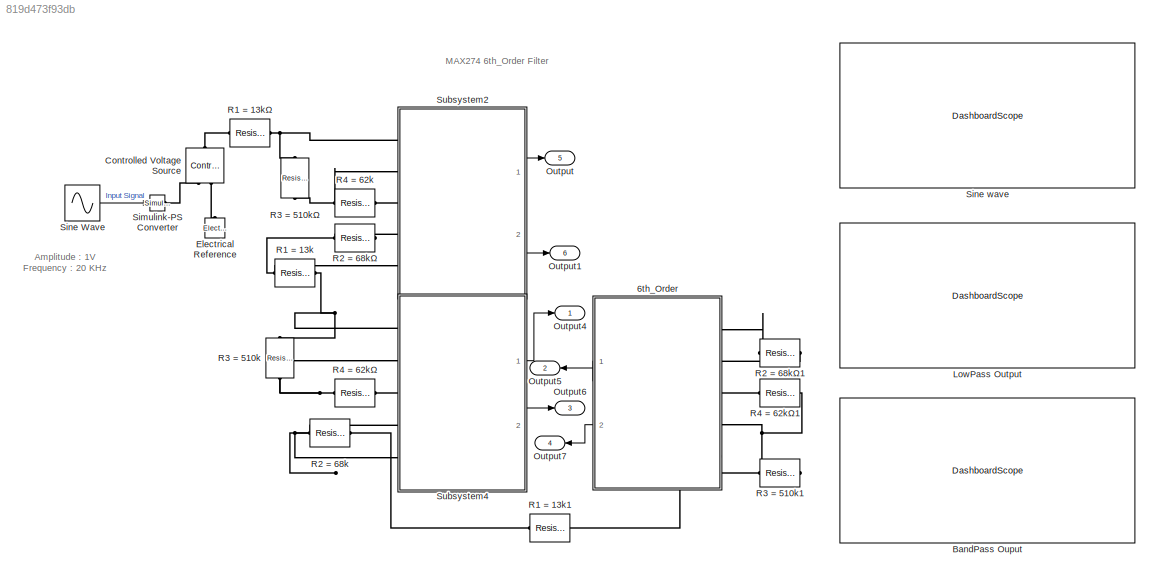
MODEL slx_819d473f93db
KIND model
CONFIG AbsTol = auto
CONFIG EnableMultiTasking = off
CONFIG FixedStep = auto
CONFIG MaxStep = auto
CONFIG MinStep = auto
CONFIG RelTol = 1e-3
CONFIG SampleTimeConstraint = Unconstrained
CONFIG Solver = VariableStepAuto
CONFIG SolverName = VariableStepAuto
CONFIG StartTime = 0.0
CONFIG StopTime = 0.01
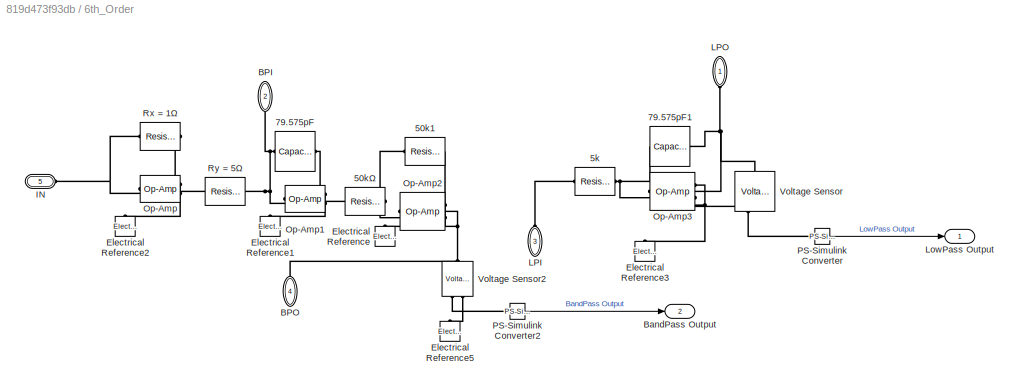
BLOCK [SubSystem] 6th_Order
  Ports = [0, 2, 0, 0, 0, 5]
  RequestExecContextInheritance = off
BLOCK [Reference] 6th_Order/50k1  REF=elec_lib/Passive Devices/Resistor
  Ports = [0, 0, 0, 0, 0, 1, 1]
  SourceBlock = elec_lib/Passive Devices/Resistor
  SourceProductBaseCode = SN
  SourceProductName = Simscape Electronics
  SourceType = Resistor
BLOCK [Reference] 6th_Order/50kΩ  REF=elec_lib/Passive Devices/Resistor
  Ports = [0, 0, 0, 0, 0, 1, 1]
  SourceBlock = elec_lib/Passive Devices/Resistor
  SourceProductBaseCode = SN
  SourceProductName = Simscape Electronics
  SourceType = Resistor
BLOCK [Reference] 6th_Order/5k  REF=elec_lib/Passive Devices/Resistor
  Ports = [0, 0, 0, 0, 0, 1, 1]
  SourceBlock = elec_lib/Passive Devices/Resistor
  SourceProductBaseCode = SN
  SourceProductName = Simscape Electronics
  SourceType = Resistor
BLOCK [Reference] 6th_Order/79.575pF  REF=elec_lib/Passive Devices/Capacitor
  Ports = [0, 0, 0, 0, 0, 1, 1]
  SourceBlock = elec_lib/Passive Devices/Capacitor
  SourceProductBaseCode = SN
  SourceProductName = Simscape Electronics
  SourceType = Capacitor
BLOCK [Reference] 6th_Order/79.575pF1  REF=elec_lib/Passive Devices/Capacitor
  Ports = [0, 0, 0, 0, 0, 1, 1]
  SourceBlock = elec_lib/Passive Devices/Capacitor
  SourceProductBaseCode = SN
  SourceProductName = Simscape Electronics
  SourceType = Capacitor
BLOCK [PMIOPort] 6th_Order/BPI
  Port = 2
  Side = Left
BLOCK [PMIOPort] 6th_Order/BPO
  Port = 4
  Side = Left
BLOCK [Outport] 6th_Order/BandPass Output
  IconDisplay = Port number
  Port = 2
BLOCK [Reference] 6th_Order/Electrical Reference  REF=fl_lib/Electrical/Electrical Elements/Electrical Reference
  Ports = [0, 0, 0, 0, 0, 1]
  SourceBlock = fl_lib/Electrical/Electrical Elements/Electrical Reference
  SourceProductBaseCode = SS
  SourceProductName = Simscape
  SourceType = Electrical Reference
BLOCK [Reference] 6th_Order/Electrical Reference1  REF=fl_lib/Electrical/Electrical Elements/Electrical Reference
  Ports = [0, 0, 0, 0, 0, 1]
  SourceBlock = fl_lib/Electrical/Electrical Elements/Electrical Reference
  SourceProductBaseCode = SS
  SourceProductName = Simscape
  SourceType = Electrical Reference
BLOCK [Reference] 6th_Order/Electrical Reference2  REF=fl_lib/Electrical/Electrical Elements/Electrical Reference
  Ports = [0, 0, 0, 0, 0, 1]
  SourceBlock = fl_lib/Electrical/Electrical Elements/Electrical Reference
  SourceProductBaseCode = SS
  SourceProductName = Simscape
  SourceType = Electrical Reference
BLOCK [Reference] 6th_Order/Electrical Reference3  REF=fl_lib/Electrical/Electrical Elements/Electrical Reference
  Ports = [0, 0, 0, 0, 0, 1]
  SourceBlock = fl_lib/Electrical/Electrical Elements/Electrical Reference
  SourceProductBaseCode = SS
  SourceProductName = Simscape
  SourceType = Electrical Reference
BLOCK [Reference] 6th_Order/Electrical Reference5  REF=fl_lib/Electrical/Electrical Elements/Electrical Reference
  Ports = [0, 0, 0, 0, 0, 1]
  SourceBlock = fl_lib/Electrical/Electrical Elements/Electrical Reference
  SourceProductBaseCode = SS
  SourceProductName = Simscape
  SourceType = Electrical Reference
BLOCK [PMIOPort] 6th_Order/IN
  Port = 5
  Side = Left
BLOCK [PMIOPort] 6th_Order/LPI
  Port = 3
  Side = Left
BLOCK [PMIOPort] 6th_Order/LPO
  Side = Left
BLOCK [Outport] 6th_Order/LowPass Output
  IconDisplay = Port number
BLOCK [Reference] 6th_Order/Op-Amp  REF=fl_lib/Electrical/Electrical Elements/Op-Amp
  Ports = [0, 0, 0, 0, 0, 2, 1]
  SourceBlock = fl_lib/Electrical/Electrical Elements/Op-Amp
  SourceProductBaseCode = SS
  SourceProductName = Simscape
  SourceType = Op-Amp
BLOCK [Reference] 6th_Order/Op-Amp1  REF=fl_lib/Electrical/Electrical Elements/Op-Amp
  Ports = [0, 0, 0, 0, 0, 2, 1]
  SourceBlock = fl_lib/Electrical/Electrical Elements/Op-Amp
  SourceProductBaseCode = SS
  SourceProductName = Simscape
  SourceType = Op-Amp
BLOCK [Reference] 6th_Order/Op-Amp2  REF=fl_lib/Electrical/Electrical Elements/Op-Amp
  Ports = [0, 0, 0, 0, 0, 2, 1]
  SourceBlock = fl_lib/Electrical/Electrical Elements/Op-Amp
  SourceProductBaseCode = SS
  SourceProductName = Simscape
  SourceType = Op-Amp
BLOCK [Reference] 6th_Order/Op-Amp3  REF=fl_lib/Electrical/Electrical Elements/Op-Amp
  Ports = [0, 0, 0, 0, 0, 2, 1]
  SourceBlock = fl_lib/Electrical/Electrical Elements/Op-Amp
  SourceProductBaseCode = SS
  SourceProductName = Simscape
  SourceType = Op-Amp
BLOCK [Reference] 6th_Order/PS-Simulink Converter  REF=nesl_utility/PS-Simulink
Converter
  Ports = [0, 1, 0, 0, 0, 1]
  SourceBlock = nesl_utility/PS-Simulink\nConverter
  SourceProductBaseCode = SS
  SourceProductName = Simscape
  SourceType = PS-Simulink\nConverter
BLOCK [Reference] 6th_Order/PS-Simulink Converter2  REF=nesl_utility/PS-Simulink
Converter
  Ports = [0, 1, 0, 0, 0, 1]
  SourceBlock = nesl_utility/PS-Simulink\nConverter
  SourceProductBaseCode = SS
  SourceProductName = Simscape
  SourceType = PS-Simulink\nConverter
BLOCK [Reference] 6th_Order/Rx = 1Ω  REF=elec_lib/Passive Devices/Resistor
  Ports = [0, 0, 0, 0, 0, 1, 1]
  SourceBlock = elec_lib/Passive Devices/Resistor
  SourceProductBaseCode = SN
  SourceProductName = Simscape Electronics
  SourceType = Resistor
BLOCK [Reference] 6th_Order/Ry = 5Ω  REF=elec_lib/Passive Devices/Resistor
  Ports = [0, 0, 0, 0, 0, 1, 1]
  SourceBlock = elec_lib/Passive Devices/Resistor
  SourceProductBaseCode = SN
  SourceProductName = Simscape Electronics
  SourceType = Resistor
BLOCK [Reference] 6th_Order/Voltage Sensor  REF=fl_lib/Electrical/Electrical Sensors/Voltage Sensor
  Ports = [0, 0, 0, 0, 0, 1, 2]
  SourceBlock = fl_lib/Electrical/Electrical Sensors/Voltage Sensor
  SourceProductBaseCode = SS
  SourceProductName = Simscape
  SourceType = Voltage Sensor
BLOCK [Reference] 6th_Order/Voltage Sensor2  REF=fl_lib/Electrical/Electrical Sensors/Voltage Sensor
  Ports = [0, 0, 0, 0, 0, 1, 2]
  SourceBlock = fl_lib/Electrical/Electrical Sensors/Voltage Sensor
  SourceProductBaseCode = SS
  SourceProductName = Simscape
  SourceType = Voltage Sensor
BLOCK [DashboardScope] BandPass Ouput
  WebBlockId = 617
BLOCK [Reference] Controlled Voltage Source  REF=fl_lib/Electrical/Electrical Sources/Controlled Voltage
Source
  Ports = [0, 0, 0, 0, 0, 1, 2]
  SourceBlock = fl_lib/Electrical/Electrical Sources/Controlled Voltage\nSource
  SourceProductBaseCode = SS
  SourceProductName = Simscape
  SourceType = Controlled Voltage\nSource
BLOCK [Reference] Electrical Reference  REF=fl_lib/Electrical/Electrical Elements/Electrical Reference
  Ports = [0, 0, 0, 0, 0, 1]
  SourceBlock = fl_lib/Electrical/Electrical Elements/Electrical Reference
  SourceProductBaseCode = SS
  SourceProductName = Simscape
  SourceType = Electrical Reference
BLOCK [DashboardScope] LowPass Output
  WebBlockId = 616
BLOCK [Outport] Output
  IconDisplay = Port number
  Port = 5
BLOCK [Outport] Output1
  IconDisplay = Port number
  Port = 6
BLOCK [Outport] Output4
  IconDisplay = Port number
BLOCK [Outport] Output5
  IconDisplay = Port number
  Port = 2
BLOCK [Outport] Output6
  IconDisplay = Port number
  Port = 3
BLOCK [Outport] Output7
  IconDisplay = Port number
  Port = 4
BLOCK [Reference] R1 = 13k  REF=elec_lib/Passive Devices/Resistor
  Ports = [0, 0, 0, 0, 0, 1, 1]
  SourceBlock = elec_lib/Passive Devices/Resistor
  SourceProductBaseCode = SN
  SourceProductName = Simscape Electronics
  SourceType = Resistor
BLOCK [Reference] R1 = 13k1  REF=elec_lib/Passive Devices/Resistor
  Ports = [0, 0, 0, 0, 0, 1, 1]
  SourceBlock = elec_lib/Passive Devices/Resistor
  SourceProductBaseCode = SN
  SourceProductName = Simscape Electronics
  SourceType = Resistor
BLOCK [Reference] R1 = 13kΩ  REF=elec_lib/Passive Devices/Resistor
  Ports = [0, 0, 0, 0, 0, 1, 1]
  SourceBlock = elec_lib/Passive Devices/Resistor
  SourceProductBaseCode = SN
  SourceProductName = Simscape Electronics
  SourceType = Resistor
BLOCK [Reference] R2 = 68k  REF=elec_lib/Passive Devices/Resistor
  Ports = [0, 0, 0, 0, 0, 1, 1]
  SourceBlock = elec_lib/Passive Devices/Resistor
  SourceProductBaseCode = SN
  SourceProductName = Simscape Electronics
  SourceType = Resistor
BLOCK [Reference] R2 = 68kΩ  REF=elec_lib/Passive Devices/Resistor
  Ports = [0, 0, 0, 0, 0, 1, 1]
  SourceBlock = elec_lib/Passive Devices/Resistor
  SourceProductBaseCode = SN
  SourceProductName = Simscape Electronics
  SourceType = Resistor
BLOCK [Reference] R2 = 68kΩ1  REF=elec_lib/Passive Devices/Resistor
  Ports = [0, 0, 0, 0, 0, 1, 1]
  SourceBlock = elec_lib/Passive Devices/Resistor
  SourceProductBaseCode = SN
  SourceProductName = Simscape Electronics
  SourceType = Resistor
BLOCK [Reference] R3 = 510k  REF=elec_lib/Passive Devices/Resistor
  Ports = [0, 0, 0, 0, 0, 1, 1]
  SourceBlock = elec_lib/Passive Devices/Resistor
  SourceProductBaseCode = SN
  SourceProductName = Simscape Electronics
  SourceType = Resistor
BLOCK [Reference] R3 = 510k1  REF=elec_lib/Passive Devices/Resistor
  Ports = [0, 0, 0, 0, 0, 1, 1]
  SourceBlock = elec_lib/Passive Devices/Resistor
  SourceProductBaseCode = SN
  SourceProductName = Simscape Electronics
  SourceType = Resistor
BLOCK [Reference] R3 = 510kΩ  REF=elec_lib/Passive Devices/Resistor
  Ports = [0, 0, 0, 0, 0, 1, 1]
  SourceBlock = elec_lib/Passive Devices/Resistor
  SourceProductBaseCode = SN
  SourceProductName = Simscape Electronics
  SourceType = Resistor
BLOCK [Reference] R4 = 62k  REF=elec_lib/Passive Devices/Resistor
  Ports = [0, 0, 0, 0, 0, 1, 1]
  SourceBlock = elec_lib/Passive Devices/Resistor
  SourceProductBaseCode = SN
  SourceProductName = Simscape Electronics
  SourceType = Resistor
BLOCK [Reference] R4 = 62kΩ  REF=elec_lib/Passive Devices/Resistor
  Ports = [0, 0, 0, 0, 0, 1, 1]
  SourceBlock = elec_lib/Passive Devices/Resistor
  SourceProductBaseCode = SN
  SourceProductName = Simscape Electronics
  SourceType = Resistor
BLOCK [Reference] R4 = 62kΩ1  REF=elec_lib/Passive Devices/Resistor
  Ports = [0, 0, 0, 0, 0, 1, 1]
  SourceBlock = elec_lib/Passive Devices/Resistor
  SourceProductBaseCode = SN
  SourceProductName = Simscape Electronics
  SourceType = Resistor
BLOCK [Reference] Simulink-PS Converter  REF=nesl_utility/Simulink-PS
Converter
  Ports = [1, 0, 0, 0, 0, 0, 1]
  SourceBlock = nesl_utility/Simulink-PS\nConverter
  SourceProductBaseCode = SS
  SourceProductName = Simscape
  SourceType = Simulink-PS\nConverter
BLOCK [Sin] Sine Wave 
  Frequency = 2*pi*20e3
  Ports = [0, 1]
  SampleTime = 0
BLOCK [DashboardScope] Sine wave
  WebBlockId = 604
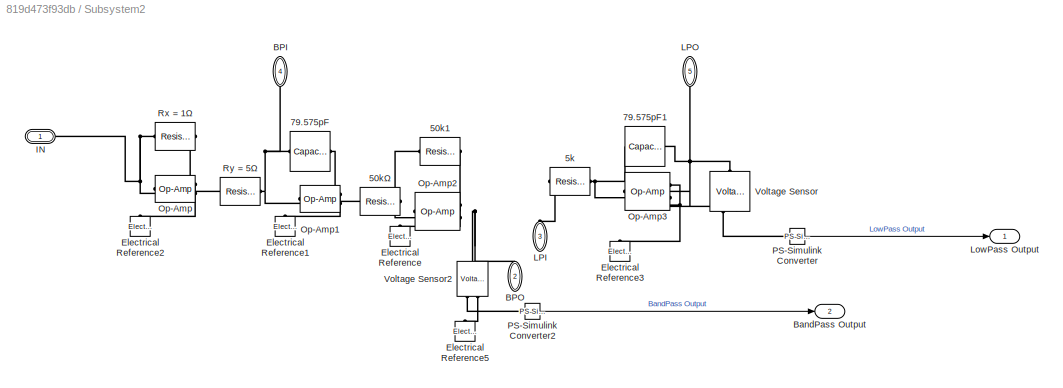
BLOCK [SubSystem] Subsystem2
  Ports = [0, 2, 0, 0, 0, 5]
  RequestExecContextInheritance = off
BLOCK [Reference] Subsystem2/50k1  REF=elec_lib/Passive Devices/Resistor
  Ports = [0, 0, 0, 0, 0, 1, 1]
  SourceBlock = elec_lib/Passive Devices/Resistor
  SourceProductBaseCode = SN
  SourceProductName = Simscape Electronics
  SourceType = Resistor
BLOCK [Reference] Subsystem2/50kΩ  REF=elec_lib/Passive Devices/Resistor
  Ports = [0, 0, 0, 0, 0, 1, 1]
  SourceBlock = elec_lib/Passive Devices/Resistor
  SourceProductBaseCode = SN
  SourceProductName = Simscape Electronics
  SourceType = Resistor
BLOCK [Reference] Subsystem2/5k  REF=elec_lib/Passive Devices/Resistor
  Ports = [0, 0, 0, 0, 0, 1, 1]
  SourceBlock = elec_lib/Passive Devices/Resistor
  SourceProductBaseCode = SN
  SourceProductName = Simscape Electronics
  SourceType = Resistor
BLOCK [Reference] Subsystem2/79.575pF  REF=elec_lib/Passive Devices/Capacitor
  Ports = [0, 0, 0, 0, 0, 1, 1]
  SourceBlock = elec_lib/Passive Devices/Capacitor
  SourceProductBaseCode = SN
  SourceProductName = Simscape Electronics
  SourceType = Capacitor
BLOCK [Reference] Subsystem2/79.575pF1  REF=elec_lib/Passive Devices/Capacitor
  Ports = [0, 0, 0, 0, 0, 1, 1]
  SourceBlock = elec_lib/Passive Devices/Capacitor
  SourceProductBaseCode = SN
  SourceProductName = Simscape Electronics
  SourceType = Capacitor
BLOCK [PMIOPort] Subsystem2/BPI
  Port = 4
  Side = Left
BLOCK [PMIOPort] Subsystem2/BPO
  Port = 2
  Side = Left
BLOCK [Outport] Subsystem2/BandPass Output
  IconDisplay = Port number
  Port = 2
BLOCK [Reference] Subsystem2/Electrical Reference  REF=fl_lib/Electrical/Electrical Elements/Electrical Reference
  Ports = [0, 0, 0, 0, 0, 1]
  SourceBlock = fl_lib/Electrical/Electrical Elements/Electrical Reference
  SourceProductBaseCode = SS
  SourceProductName = Simscape
  SourceType = Electrical Reference
BLOCK [Reference] Subsystem2/Electrical Reference1  REF=fl_lib/Electrical/Electrical Elements/Electrical Reference
  Ports = [0, 0, 0, 0, 0, 1]
  SourceBlock = fl_lib/Electrical/Electrical Elements/Electrical Reference
  SourceProductBaseCode = SS
  SourceProductName = Simscape
  SourceType = Electrical Reference
BLOCK [Reference] Subsystem2/Electrical Reference2  REF=fl_lib/Electrical/Electrical Elements/Electrical Reference
  Ports = [0, 0, 0, 0, 0, 1]
  SourceBlock = fl_lib/Electrical/Electrical Elements/Electrical Reference
  SourceProductBaseCode = SS
  SourceProductName = Simscape
  SourceType = Electrical Reference
BLOCK [Reference] Subsystem2/Electrical Reference3  REF=fl_lib/Electrical/Electrical Elements/Electrical Reference
  Ports = [0, 0, 0, 0, 0, 1]
  SourceBlock = fl_lib/Electrical/Electrical Elements/Electrical Reference
  SourceProductBaseCode = SS
  SourceProductName = Simscape
  SourceType = Electrical Reference
BLOCK [Reference] Subsystem2/Electrical Reference5  REF=fl_lib/Electrical/Electrical Elements/Electrical Reference
  Ports = [0, 0, 0, 0, 0, 1]
  SourceBlock = fl_lib/Electrical/Electrical Elements/Electrical Reference
  SourceProductBaseCode = SS
  SourceProductName = Simscape
  SourceType = Electrical Reference
BLOCK [PMIOPort] Subsystem2/IN
  Side = Left
BLOCK [PMIOPort] Subsystem2/LPI
  Port = 3
  Side = Left
BLOCK [PMIOPort] Subsystem2/LPO
  Port = 5
  Side = Left
BLOCK [Outport] Subsystem2/LowPass Output
  IconDisplay = Port number
BLOCK [Reference] Subsystem2/Op-Amp  REF=fl_lib/Electrical/Electrical Elements/Op-Amp
  Ports = [0, 0, 0, 0, 0, 2, 1]
  SourceBlock = fl_lib/Electrical/Electrical Elements/Op-Amp
  SourceProductBaseCode = SS
  SourceProductName = Simscape
  SourceType = Op-Amp
BLOCK [Reference] Subsystem2/Op-Amp1  REF=fl_lib/Electrical/Electrical Elements/Op-Amp
  Ports = [0, 0, 0, 0, 0, 2, 1]
  SourceBlock = fl_lib/Electrical/Electrical Elements/Op-Amp
  SourceProductBaseCode = SS
  SourceProductName = Simscape
  SourceType = Op-Amp
BLOCK [Reference] Subsystem2/Op-Amp2  REF=fl_lib/Electrical/Electrical Elements/Op-Amp
  Ports = [0, 0, 0, 0, 0, 2, 1]
  SourceBlock = fl_lib/Electrical/Electrical Elements/Op-Amp
  SourceProductBaseCode = SS
  SourceProductName = Simscape
  SourceType = Op-Amp
BLOCK [Reference] Subsystem2/Op-Amp3  REF=fl_lib/Electrical/Electrical Elements/Op-Amp
  Ports = [0, 0, 0, 0, 0, 2, 1]
  SourceBlock = fl_lib/Electrical/Electrical Elements/Op-Amp
  SourceProductBaseCode = SS
  SourceProductName = Simscape
  SourceType = Op-Amp
BLOCK [Reference] Subsystem2/PS-Simulink Converter  REF=nesl_utility/PS-Simulink
Converter
  Ports = [0, 1, 0, 0, 0, 1]
  SourceBlock = nesl_utility/PS-Simulink\nConverter
  SourceProductBaseCode = SS
  SourceProductName = Simscape
  SourceType = PS-Simulink\nConverter
BLOCK [Reference] Subsystem2/PS-Simulink Converter2  REF=nesl_utility/PS-Simulink
Converter
  Ports = [0, 1, 0, 0, 0, 1]
  SourceBlock = nesl_utility/PS-Simulink\nConverter
  SourceProductBaseCode = SS
  SourceProductName = Simscape
  SourceType = PS-Simulink\nConverter
BLOCK [Reference] Subsystem2/Rx = 1Ω  REF=elec_lib/Passive Devices/Resistor
  Ports = [0, 0, 0, 0, 0, 1, 1]
  SourceBlock = elec_lib/Passive Devices/Resistor
  SourceProductBaseCode = SN
  SourceProductName = Simscape Electronics
  SourceType = Resistor
BLOCK [Reference] Subsystem2/Ry = 5Ω  REF=elec_lib/Passive Devices/Resistor
  Ports = [0, 0, 0, 0, 0, 1, 1]
  SourceBlock = elec_lib/Passive Devices/Resistor
  SourceProductBaseCode = SN
  SourceProductName = Simscape Electronics
  SourceType = Resistor
BLOCK [Reference] Subsystem2/Voltage Sensor  REF=fl_lib/Electrical/Electrical Sensors/Voltage Sensor
  Ports = [0, 0, 0, 0, 0, 1, 2]
  SourceBlock = fl_lib/Electrical/Electrical Sensors/Voltage Sensor
  SourceProductBaseCode = SS
  SourceProductName = Simscape
  SourceType = Voltage Sensor
BLOCK [Reference] Subsystem2/Voltage Sensor2  REF=fl_lib/Electrical/Electrical Sensors/Voltage Sensor
  Ports = [0, 0, 0, 0, 0, 1, 2]
  SourceBlock = fl_lib/Electrical/Electrical Sensors/Voltage Sensor
  SourceProductBaseCode = SS
  SourceProductName = Simscape
  SourceType = Voltage Sensor
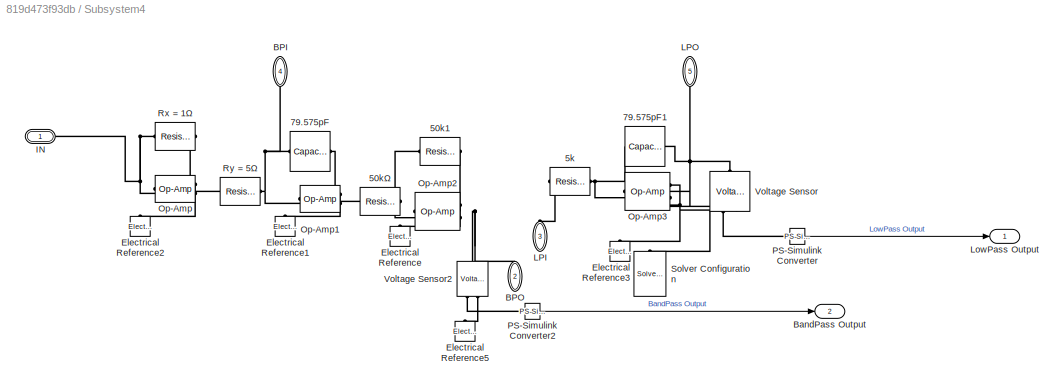
BLOCK [SubSystem] Subsystem4
  Ports = [0, 2, 0, 0, 0, 5]
  RequestExecContextInheritance = off
BLOCK [Reference] Subsystem4/50k1  REF=elec_lib/Passive Devices/Resistor
  Ports = [0, 0, 0, 0, 0, 1, 1]
  SourceBlock = elec_lib/Passive Devices/Resistor
  SourceProductBaseCode = SN
  SourceProductName = Simscape Electronics
  SourceType = Resistor
BLOCK [Reference] Subsystem4/50kΩ  REF=elec_lib/Passive Devices/Resistor
  Ports = [0, 0, 0, 0, 0, 1, 1]
  SourceBlock = elec_lib/Passive Devices/Resistor
  SourceProductBaseCode = SN
  SourceProductName = Simscape Electronics
  SourceType = Resistor
BLOCK [Reference] Subsystem4/5k  REF=elec_lib/Passive Devices/Resistor
  Ports = [0, 0, 0, 0, 0, 1, 1]
  SourceBlock = elec_lib/Passive Devices/Resistor
  SourceProductBaseCode = SN
  SourceProductName = Simscape Electronics
  SourceType = Resistor
BLOCK [Reference] Subsystem4/79.575pF  REF=elec_lib/Passive Devices/Capacitor
  Ports = [0, 0, 0, 0, 0, 1, 1]
  SourceBlock = elec_lib/Passive Devices/Capacitor
  SourceProductBaseCode = SN
  SourceProductName = Simscape Electronics
  SourceType = Capacitor
BLOCK [Reference] Subsystem4/79.575pF1  REF=elec_lib/Passive Devices/Capacitor
  Ports = [0, 0, 0, 0, 0, 1, 1]
  SourceBlock = elec_lib/Passive Devices/Capacitor
  SourceProductBaseCode = SN
  SourceProductName = Simscape Electronics
  SourceType = Capacitor
BLOCK [PMIOPort] Subsystem4/BPI
  Port = 4
  Side = Left
BLOCK [PMIOPort] Subsystem4/BPO
  Port = 2
  Side = Left
BLOCK [Outport] Subsystem4/BandPass Output
  IconDisplay = Port number
  Port = 2
BLOCK [Reference] Subsystem4/Electrical Reference  REF=fl_lib/Electrical/Electrical Elements/Electrical Reference
  Ports = [0, 0, 0, 0, 0, 1]
  SourceBlock = fl_lib/Electrical/Electrical Elements/Electrical Reference
  SourceProductBaseCode = SS
  SourceProductName = Simscape
  SourceType = Electrical Reference
BLOCK [Reference] Subsystem4/Electrical Reference1  REF=fl_lib/Electrical/Electrical Elements/Electrical Reference
  Ports = [0, 0, 0, 0, 0, 1]
  SourceBlock = fl_lib/Electrical/Electrical Elements/Electrical Reference
  SourceProductBaseCode = SS
  SourceProductName = Simscape
  SourceType = Electrical Reference
BLOCK [Reference] Subsystem4/Electrical Reference2  REF=fl_lib/Electrical/Electrical Elements/Electrical Reference
  Ports = [0, 0, 0, 0, 0, 1]
  SourceBlock = fl_lib/Electrical/Electrical Elements/Electrical Reference
  SourceProductBaseCode = SS
  SourceProductName = Simscape
  SourceType = Electrical Reference
BLOCK [Reference] Subsystem4/Electrical Reference3  REF=fl_lib/Electrical/Electrical Elements/Electrical Reference
  Ports = [0, 0, 0, 0, 0, 1]
  SourceBlock = fl_lib/Electrical/Electrical Elements/Electrical Reference
  SourceProductBaseCode = SS
  SourceProductName = Simscape
  SourceType = Electrical Reference
BLOCK [Reference] Subsystem4/Electrical Reference5  REF=fl_lib/Electrical/Electrical Elements/Electrical Reference
  Ports = [0, 0, 0, 0, 0, 1]
  SourceBlock = fl_lib/Electrical/Electrical Elements/Electrical Reference
  SourceProductBaseCode = SS
  SourceProductName = Simscape
  SourceType = Electrical Reference
BLOCK [PMIOPort] Subsystem4/IN
  Side = Left
BLOCK [PMIOPort] Subsystem4/LPI
  Port = 3
  Side = Left
BLOCK [PMIOPort] Subsystem4/LPO
  Port = 5
  Side = Left
BLOCK [Outport] Subsystem4/LowPass Output
  IconDisplay = Port number
BLOCK [Reference] Subsystem4/Op-Amp  REF=fl_lib/Electrical/Electrical Elements/Op-Amp
  Ports = [0, 0, 0, 0, 0, 2, 1]
  SourceBlock = fl_lib/Electrical/Electrical Elements/Op-Amp
  SourceProductBaseCode = SS
  SourceProductName = Simscape
  SourceType = Op-Amp
BLOCK [Reference] Subsystem4/Op-Amp1  REF=fl_lib/Electrical/Electrical Elements/Op-Amp
  Ports = [0, 0, 0, 0, 0, 2, 1]
  SourceBlock = fl_lib/Electrical/Electrical Elements/Op-Amp
  SourceProductBaseCode = SS
  SourceProductName = Simscape
  SourceType = Op-Amp
BLOCK [Reference] Subsystem4/Op-Amp2  REF=fl_lib/Electrical/Electrical Elements/Op-Amp
  Ports = [0, 0, 0, 0, 0, 2, 1]
  SourceBlock = fl_lib/Electrical/Electrical Elements/Op-Amp
  SourceProductBaseCode = SS
  SourceProductName = Simscape
  SourceType = Op-Amp
BLOCK [Reference] Subsystem4/Op-Amp3  REF=fl_lib/Electrical/Electrical Elements/Op-Amp
  Ports = [0, 0, 0, 0, 0, 2, 1]
  SourceBlock = fl_lib/Electrical/Electrical Elements/Op-Amp
  SourceProductBaseCode = SS
  SourceProductName = Simscape
  SourceType = Op-Amp
BLOCK [Reference] Subsystem4/PS-Simulink Converter  REF=nesl_utility/PS-Simulink
Converter
  Ports = [0, 1, 0, 0, 0, 1]
  SourceBlock = nesl_utility/PS-Simulink\nConverter
  SourceProductBaseCode = SS
  SourceProductName = Simscape
  SourceType = PS-Simulink\nConverter
BLOCK [Reference] Subsystem4/PS-Simulink Converter2  REF=nesl_utility/PS-Simulink
Converter
  Ports = [0, 1, 0, 0, 0, 1]
  SourceBlock = nesl_utility/PS-Simulink\nConverter
  SourceProductBaseCode = SS
  SourceProductName = Simscape
  SourceType = PS-Simulink\nConverter
BLOCK [Reference] Subsystem4/Rx = 1Ω  REF=elec_lib/Passive Devices/Resistor
  Ports = [0, 0, 0, 0, 0, 1, 1]
  SourceBlock = elec_lib/Passive Devices/Resistor
  SourceProductBaseCode = SN
  SourceProductName = Simscape Electronics
  SourceType = Resistor
BLOCK [Reference] Subsystem4/Ry = 5Ω  REF=elec_lib/Passive Devices/Resistor
  Ports = [0, 0, 0, 0, 0, 1, 1]
  SourceBlock = elec_lib/Passive Devices/Resistor
  SourceProductBaseCode = SN
  SourceProductName = Simscape Electronics
  SourceType = Resistor
BLOCK [Reference] Subsystem4/Solver Configuration  REF=nesl_utility/Solver
Configuration
  Ports = [0, 0, 0, 0, 0, 0, 1]
  SourceBlock = nesl_utility/Solver\nConfiguration
  SourceProductBaseCode = SS
  SourceProductName = Simscape
  SourceType = Solver\nConfiguration
BLOCK [Reference] Subsystem4/Voltage Sensor  REF=fl_lib/Electrical/Electrical Sensors/Voltage Sensor
  Ports = [0, 0, 0, 0, 0, 1, 2]
  SourceBlock = fl_lib/Electrical/Electrical Sensors/Voltage Sensor
  SourceProductBaseCode = SS
  SourceProductName = Simscape
  SourceType = Voltage Sensor
BLOCK [Reference] Subsystem4/Voltage Sensor2  REF=fl_lib/Electrical/Electrical Sensors/Voltage Sensor
  Ports = [0, 0, 0, 0, 0, 1, 2]
  SourceBlock = fl_lib/Electrical/Electrical Sensors/Voltage Sensor
  SourceProductBaseCode = SS
  SourceProductName = Simscape
  SourceType = Voltage Sensor
ANNOTATION (root): MAX274 6th_Order Filter
ANNOTATION (root): Amplitude : 1V Frequency : 20 KHz
LINE 6th_Order/PS-Simulink Converter2:1 -> 6th_Order/BandPass Output:1
LINE 6th_Order/PS-Simulink Converter:1 -> 6th_Order/LowPass Output:1
LINE 6th_Order:1 -> Output5:1
LINE 6th_Order:2 -> Output7:1
LINE Sine Wave :1 -> Simulink-PS Converter:1
LINE Subsystem2/PS-Simulink Converter2:1 -> Subsystem2/BandPass Output:1
LINE Subsystem2/PS-Simulink Converter:1 -> Subsystem2/LowPass Output:1
LINE Subsystem2:1 -> Output:1
LINE Subsystem2:2 -> Output1:1
LINE Subsystem4/PS-Simulink Converter2:1 -> Subsystem4/BandPass Output:1
LINE Subsystem4/PS-Simulink Converter:1 -> Subsystem4/LowPass Output:1
LINE Subsystem4:1 -> Output4:1
LINE Subsystem4:2 -> Output6:1
PNET net1: 6th_Order/50k1:LConn1 -- 6th_Order/50kΩ:RConn1 -- 6th_Order/Op-Amp2:LConn2
PNET net2: 6th_Order/50k1:RConn1 -- 6th_Order/BPO:RConn1 -- 6th_Order/Op-Amp2:RConn1 -- 6th_Order/Voltage Sensor2:LConn1
PNET net3: 6th_Order/50kΩ:LConn1 -- 6th_Order/79.575pF:RConn1 -- 6th_Order/Op-Amp1:RConn1
PLINE 6th_Order/5k:LConn1 -- 6th_Order/LPI:RConn1
PNET net4: 6th_Order/5k:RConn1 -- 6th_Order/79.575pF1:LConn1 -- 6th_Order/Op-Amp3:LConn2
PNET net5: 6th_Order/79.575pF1:RConn1 -- 6th_Order/LPO:RConn1 -- 6th_Order/Op-Amp3:RConn1 -- 6th_Order/Voltage Sensor:LConn1
PNET net6: 6th_Order/79.575pF:LConn1 -- 6th_Order/BPI:RConn1 -- 6th_Order/Op-Amp1:LConn2 -- 6th_Order/Ry = 5Ω:RConn1
PLINE 6th_Order/Electrical Reference1:LConn1 -- 6th_Order/Op-Amp1:LConn1
PLINE 6th_Order/Electrical Reference2:LConn1 -- 6th_Order/Op-Amp:LConn1
PNET net7: 6th_Order/Electrical Reference3:LConn1 -- 6th_Order/Op-Amp3:LConn1 -- 6th_Order/Voltage Sensor:RConn2
PLINE 6th_Order/Electrical Reference5:LConn1 -- 6th_Order/Voltage Sensor2:RConn2
PLINE 6th_Order/Electrical Reference:LConn1 -- 6th_Order/Op-Amp2:LConn1
PNET net8: 6th_Order/IN:RConn1 -- 6th_Order/Op-Amp:LConn2 -- 6th_Order/Rx = 1Ω:LConn1
PNET net9: 6th_Order/Op-Amp:RConn1 -- 6th_Order/Rx = 1Ω:RConn1 -- 6th_Order/Ry = 5Ω:LConn1
PLINE 6th_Order/PS-Simulink Converter2:LConn1 -- 6th_Order/Voltage Sensor2:RConn1
PLINE 6th_Order/PS-Simulink Converter:LConn1 -- 6th_Order/Voltage Sensor:RConn1
PLINE 6th_Order:LConn1 -- R2 = 68kΩ1:LConn1
PLINE 6th_Order:LConn2 -- R2 = 68kΩ1:RConn1
PLINE 6th_Order:LConn3 -- R4 = 62kΩ1:LConn1
PNET net10: 6th_Order:LConn4 -- R3 = 510k1:LConn1 -- R4 = 62kΩ1:RConn1
PNET net11: 6th_Order:LConn5 -- R1 = 13k1:LConn1 -- R3 = 510k1:RConn1
PLINE Controlled Voltage Source:LConn1 -- R1 = 13kΩ:LConn1
PLINE Controlled Voltage Source:RConn1 -- Simulink-PS Converter:RConn1
PLINE Controlled Voltage Source:RConn2 -- Electrical Reference:LConn1
PNET net12: R1 = 13k1:RConn1 -- R2 = 68k:RConn1 -- Subsystem4:LConn5
PNET net13: R1 = 13k:LConn1 -- R2 = 68kΩ:RConn1 -- Subsystem2:LConn5
PNET net14: R1 = 13k:RConn1 -- R3 = 510k:LConn1 -- Subsystem4:LConn1
PNET net15: R1 = 13kΩ:RConn1 -- R3 = 510kΩ:LConn1 -- Subsystem2:LConn1
PLINE R2 = 68k:LConn1 -- Subsystem4:LConn4
PLINE R2 = 68kΩ:LConn1 -- Subsystem2:LConn4
PNET net16: R3 = 510k:RConn1 -- R4 = 62kΩ:LConn1 -- Subsystem4:LConn2
PNET net17: R3 = 510kΩ:RConn1 -- R4 = 62k:LConn1 -- Subsystem2:LConn2
PLINE R4 = 62k:RConn1 -- Subsystem2:LConn3
PLINE R4 = 62kΩ:RConn1 -- Subsystem4:LConn3
PNET net18: Subsystem2/50k1:LConn1 -- Subsystem2/50kΩ:RConn1 -- Subsystem2/Op-Amp2:LConn2
PNET net19: Subsystem2/50k1:RConn1 -- Subsystem2/BPO:RConn1 -- Subsystem2/Op-Amp2:RConn1 -- Subsystem2/Voltage Sensor2:LConn1
PNET net20: Subsystem2/50kΩ:LConn1 -- Subsystem2/79.575pF:RConn1 -- Subsystem2/Op-Amp1:RConn1
PLINE Subsystem2/5k:LConn1 -- Subsystem2/LPI:RConn1
PNET net21: Subsystem2/5k:RConn1 -- Subsystem2/79.575pF1:LConn1 -- Subsystem2/Op-Amp3:LConn2
PNET net22: Subsystem2/79.575pF1:RConn1 -- Subsystem2/LPO:RConn1 -- Subsystem2/Op-Amp3:RConn1 -- Subsystem2/Voltage Sensor:LConn1
PNET net23: Subsystem2/79.575pF:LConn1 -- Subsystem2/BPI:RConn1 -- Subsystem2/Op-Amp1:LConn2 -- Subsystem2/Ry = 5Ω:RConn1
PLINE Subsystem2/Electrical Reference1:LConn1 -- Subsystem2/Op-Amp1:LConn1
PLINE Subsystem2/Electrical Reference2:LConn1 -- Subsystem2/Op-Amp:LConn1
PNET net24: Subsystem2/Electrical Reference3:LConn1 -- Subsystem2/Op-Amp3:LConn1 -- Subsystem2/Voltage Sensor:RConn2
PLINE Subsystem2/Electrical Reference5:LConn1 -- Subsystem2/Voltage Sensor2:RConn2
PLINE Subsystem2/Electrical Reference:LConn1 -- Subsystem2/Op-Amp2:LConn1
PNET net25: Subsystem2/IN:RConn1 -- Subsystem2/Op-Amp:LConn2 -- Subsystem2/Rx = 1Ω:LConn1
PNET net26: Subsystem2/Op-Amp:RConn1 -- Subsystem2/Rx = 1Ω:RConn1 -- Subsystem2/Ry = 5Ω:LConn1
PLINE Subsystem2/PS-Simulink Converter2:LConn1 -- Subsystem2/Voltage Sensor2:RConn1
PLINE Subsystem2/PS-Simulink Converter:LConn1 -- Subsystem2/Voltage Sensor:RConn1
PNET net27: Subsystem4/50k1:LConn1 -- Subsystem4/50kΩ:RConn1 -- Subsystem4/Op-Amp2:LConn2
PNET net28: Subsystem4/50k1:RConn1 -- Subsystem4/BPO:RConn1 -- Subsystem4/Op-Amp2:RConn1 -- Subsystem4/Voltage Sensor2:LConn1
PNET net29: Subsystem4/50kΩ:LConn1 -- Subsystem4/79.575pF:RConn1 -- Subsystem4/Op-Amp1:RConn1
PLINE Subsystem4/5k:LConn1 -- Subsystem4/LPI:RConn1
PNET net30: Subsystem4/5k:RConn1 -- Subsystem4/79.575pF1:LConn1 -- Subsystem4/Op-Amp3:LConn2
PNET net31: Subsystem4/79.575pF1:RConn1 -- Subsystem4/LPO:RConn1 -- Subsystem4/Op-Amp3:RConn1 -- Subsystem4/Voltage Sensor:LConn1
PNET net32: Subsystem4/79.575pF:LConn1 -- Subsystem4/BPI:RConn1 -- Subsystem4/Op-Amp1:LConn2 -- Subsystem4/Ry = 5Ω:RConn1
PLINE Subsystem4/Electrical Reference1:LConn1 -- Subsystem4/Op-Amp1:LConn1
PLINE Subsystem4/Electrical Reference2:LConn1 -- Subsystem4/Op-Amp:LConn1
PNET net33: Subsystem4/Electrical Reference3:LConn1 -- Subsystem4/Op-Amp3:LConn1 -- Subsystem4/Solver Configuration:RConn1 -- Subsystem4/Voltage Sensor:RConn2
PLINE Subsystem4/Electrical Reference5:LConn1 -- Subsystem4/Voltage Sensor2:RConn2
PLINE Subsystem4/Electrical Reference:LConn1 -- Subsystem4/Op-Amp2:LConn1
PNET net34: Subsystem4/IN:RConn1 -- Subsystem4/Op-Amp:LConn2 -- Subsystem4/Rx = 1Ω:LConn1
PNET net35: Subsystem4/Op-Amp:RConn1 -- Subsystem4/Rx = 1Ω:RConn1 -- Subsystem4/Ry = 5Ω:LConn1
PLINE Subsystem4/PS-Simulink Converter2:LConn1 -- Subsystem4/Voltage Sensor2:RConn1
PLINE Subsystem4/PS-Simulink Converter:LConn1 -- Subsystem4/Voltage Sensor:RConn1
note: PNET lines group multi-terminal physical nets as a canonical sorted terminal list (undirected conserving connections); 2-terminal nets keep the pairwise PLINE form
